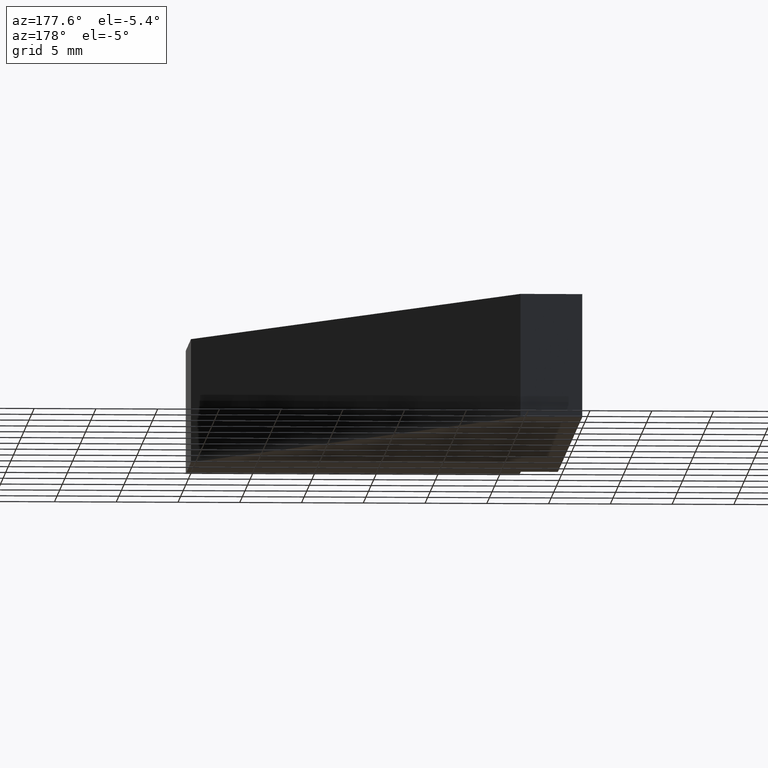
[diagram: clean part render]
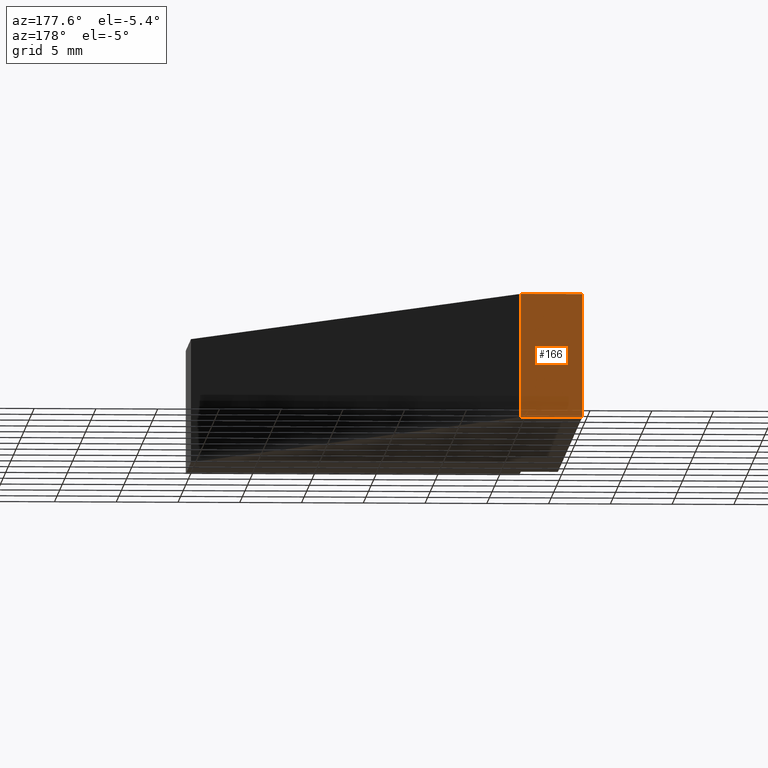
[diagram: same view with one face highlighted and labeled with its STEP entity id]
A machine part, auxiliary view. The second image highlights one B-rep face of the part: STEP entity #166.
In plain terms, the highlighted planar face has unit normal (0, 1, 0).
Its self-contained STEP definition (entity closure, byte-faithful):
#20=FACE_OUTER_BOUND('',#29,.T.);
#29=EDGE_LOOP('',(#133,#134,#135,#136));
#39=LINE('',#258,#60);
#48=LINE('',#276,#69);
#49=LINE('',#279,#70);
#50=LINE('',#280,#71);
#60=VECTOR('',#212,10.);
#69=VECTOR('',#229,10.);
#70=VECTOR('',#232,10.);
#71=VECTOR('',#233,10.);
#76=VERTEX_POINT('',#246);
#81=VERTEX_POINT('',#256);
#86=VERTEX_POINT('',#274);
#87=VERTEX_POINT('',#278);
#95=EDGE_CURVE('',#76,#81,#39,.T.);
#104=EDGE_CURVE('',#86,#81,#48,.T.);
#105=EDGE_CURVE('',#86,#87,#49,.T.);
#106=EDGE_CURVE('',#87,#76,#50,.T.);
#133=ORIENTED_EDGE('',*,*,#105,.T.);
#134=ORIENTED_EDGE('',*,*,#106,.T.);
#135=ORIENTED_EDGE('',*,*,#95,.T.);
#136=ORIENTED_EDGE('',*,*,#104,.F.);
#157=PLANE('',#198);
#166=ADVANCED_FACE('',(#20),#157,.T.);
#198=AXIS2_PLACEMENT_3D('',#277,#230,#231);
#212=DIRECTION('',(-1.,0.,0.));
#229=DIRECTION('',(0.,0.,-1.));
#230=DIRECTION('center_axis',(0.,1.,0.));
#231=DIRECTION('ref_axis',(0.,0.,1.));
#232=DIRECTION('',(1.,0.,0.));
#233=DIRECTION('',(0.,0.,-1.));
#246=CARTESIAN_POINT('',(-25.,50.,-5.));
#256=CARTESIAN_POINT('',(-30.,50.,-5.));
#258=CARTESIAN_POINT('',(-30.,50.,-5.));
#274=CARTESIAN_POINT('',(-30.,50.,5.));
#276=CARTESIAN_POINT('',(-30.,50.,0.));
#277=CARTESIAN_POINT('Origin',(-30.,50.,0.));
#278=CARTESIAN_POINT('',(-25.,50.,5.));
#279=CARTESIAN_POINT('',(-30.,50.,5.));
#280=CARTESIAN_POINT('',(-25.,50.,0.));